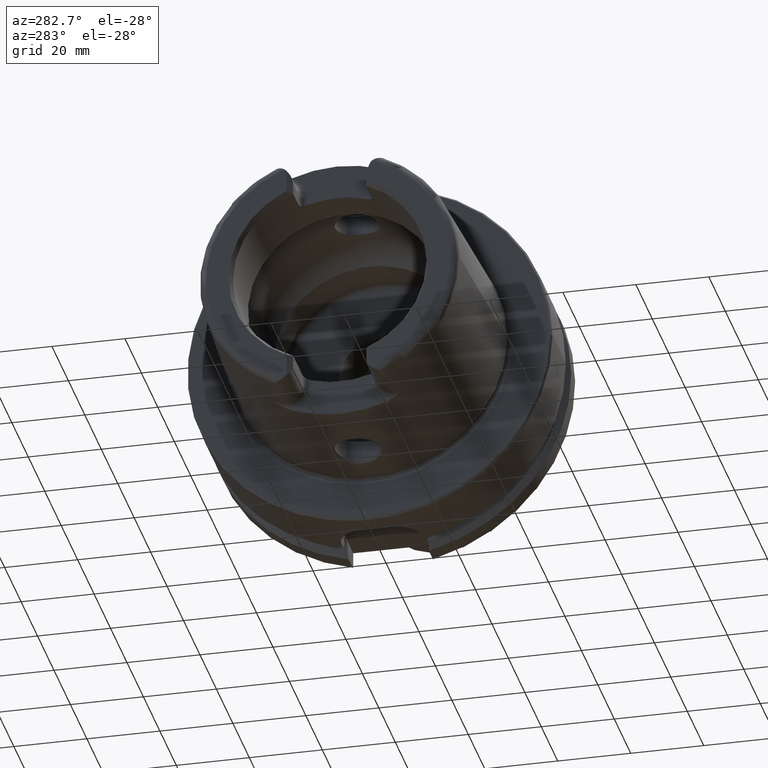
[diagram: clean part render]
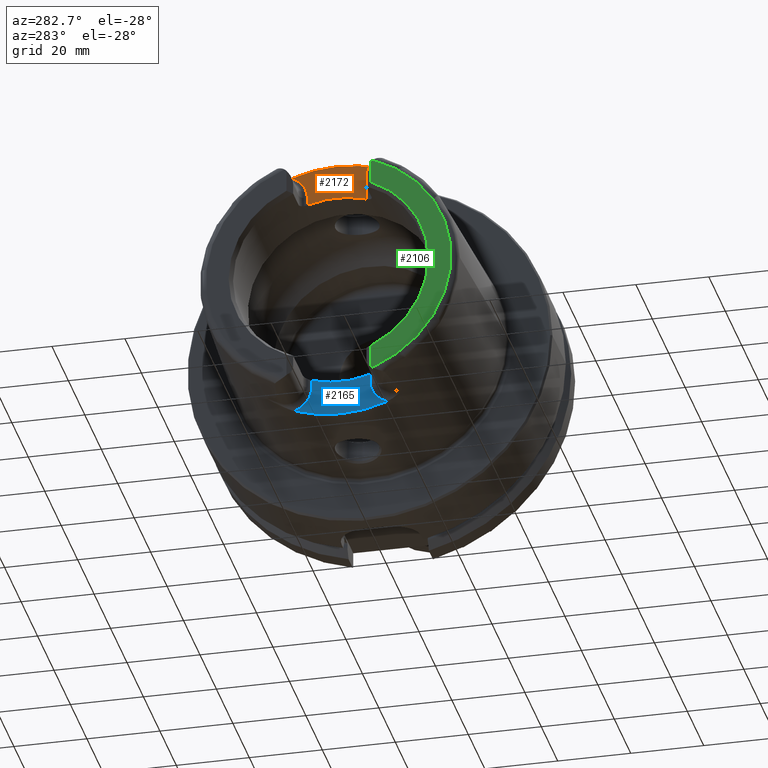
[diagram: same view with three faces highlighted in distinct colors, each labeled with its STEP entity id]
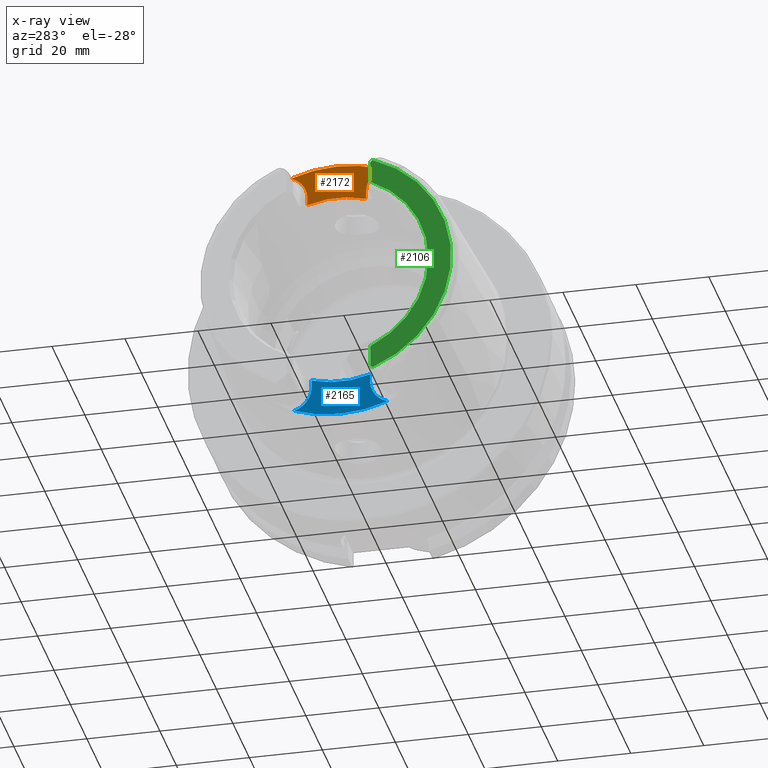
[diagram: x-ray of the same camera — body ghosted, the three highlighted faces saturated]
A machine part, auxiliary view with three faces highlighted in distinct colors.
The next image is the same camera in x-ray (body ghosted, the three faces saturated) — at least one of them is partly hidden behind the body in this view.
Their STEP definitions:

[orange] entity #2172 — the highlighted planar face has unit normal (-1, 0, 0).
#133=PLANE('',#2440);
#284=FACE_OUTER_BOUND('',#417,.T.);
#417=EDGE_LOOP('',(#1887,#1888,#1889,#1890,#1891,#1892));
#544=LINE('',#4536,#655);
#545=LINE('',#4565,#656);
#655=VECTOR('',#2971,10.);
#656=VECTOR('',#2984,10.);
#730=CIRCLE('',#2327,36.003493987976);
#773=CIRCLE('',#2413,6.88);
#775=CIRCLE('',#2416,6.88);
#787=CIRCLE('',#2441,26.5);
#912=VERTEX_POINT('',#3714);
#913=VERTEX_POINT('',#3731);
#1004=VERTEX_POINT('',#4533);
#1005=VERTEX_POINT('',#4535);
#1006=VERTEX_POINT('',#4550);
#1007=VERTEX_POINT('',#4554);
#1160=EDGE_CURVE('',#912,#913,#730,.T.);
#1298=EDGE_CURVE('',#1004,#1005,#544,.T.);
#1300=EDGE_CURVE('',#913,#1004,#773,.T.);
#1302=EDGE_CURVE('',#1006,#912,#775,.T.);
#1304=EDGE_CURVE('',#1007,#1006,#545,.T.);
#1325=EDGE_CURVE('',#1005,#1007,#787,.T.);
#1887=ORIENTED_EDGE('',*,*,#1300,.F.);
#1888=ORIENTED_EDGE('',*,*,#1160,.F.);
#1889=ORIENTED_EDGE('',*,*,#1302,.F.);
#1890=ORIENTED_EDGE('',*,*,#1304,.F.);
#1891=ORIENTED_EDGE('',*,*,#1325,.F.);
#1892=ORIENTED_EDGE('',*,*,#1298,.F.);
#2172=ADVANCED_FACE('',(#284),#133,.T.);
#2327=AXIS2_PLACEMENT_3D('',#3732,#2752,#2753);
#2413=AXIS2_PLACEMENT_3D('',#4548,#2974,#2975);
#2416=AXIS2_PLACEMENT_3D('',#4552,#2980,#2981);
#2440=AXIS2_PLACEMENT_3D('',#4623,#3036,#3037);
#2441=AXIS2_PLACEMENT_3D('',#4624,#3038,#3039);
#2752=DIRECTION('center_axis',(1.,0.,0.));
#2753=DIRECTION('ref_axis',(0.,1.,0.));
#2971=DIRECTION('',(0.,0.,-1.));
#2974=DIRECTION('center_axis',(-1.,0.,0.));
#2975=DIRECTION('ref_axis',(0.,0.564947834751706,0.82512662301574));
#2980=DIRECTION('center_axis',(-1.,0.,0.));
#2981=DIRECTION('ref_axis',(0.,-0.564947834751705,0.825126623015741));
#2984=DIRECTION('',(0.,0.,1.));
#3036=DIRECTION('center_axis',(-1.,0.,0.));
#3037=DIRECTION('ref_axis',(0.,0.,1.));
#3038=DIRECTION('center_axis',(-1.,0.,0.));
#3039=DIRECTION('ref_axis',(0.,1.,0.));
#3714=CARTESIAN_POINT('',(-40.,12.4227760464511,33.7923987701664));
#3731=CARTESIAN_POINT('',(-40.,-12.4227760464511,33.7923987701664));
#3732=CARTESIAN_POINT('Origin',(-40.,0.,0.));
#4533=CARTESIAN_POINT('',(-40.,-8.01,27.37));
#4535=CARTESIAN_POINT('',(-40.,-8.01,25.2604414054862));
#4536=CARTESIAN_POINT('',(-40.,-8.01,23.5));
#4548=CARTESIAN_POINT('Origin',(-40.,-14.89,27.37));
#4550=CARTESIAN_POINT('',(-40.,8.01,27.37));
#4552=CARTESIAN_POINT('Origin',(-40.,14.89,27.37));
#4554=CARTESIAN_POINT('',(-40.,8.01,25.2604414054862));
#4565=CARTESIAN_POINT('',(-40.,8.01,28.185));
#4623=CARTESIAN_POINT('Origin',(-40.,0.,29.));
#4624=CARTESIAN_POINT('Origin',(-40.,0.,0.));

[blue] entity #2165 — the highlighted planar face has unit normal (-1, 0, 0).
#130=PLANE('',#2428);
#277=FACE_OUTER_BOUND('',#410,.T.);
#410=EDGE_LOOP('',(#1859,#1860,#1861,#1862,#1863,#1864));
#546=LINE('',#4587,#657);
#549=LINE('',#4599,#660);
#657=VECTOR('',#2997,10.);
#660=VECTOR('',#3012,10.);
#728=CIRCLE('',#2325,36.25399498998);
#779=CIRCLE('',#2422,6.88);
#782=CIRCLE('',#2429,26.5);
#783=CIRCLE('',#2430,6.88);
#908=VERTEX_POINT('',#3663);
#909=VERTEX_POINT('',#3674);
#1010=VERTEX_POINT('',#4571);
#1012=VERTEX_POINT('',#4576);
#1014=VERTEX_POINT('',#4596);
#1015=VERTEX_POINT('',#4598);
#1154=EDGE_CURVE('',#908,#909,#728,.T.);
#1308=EDGE_CURVE('',#1010,#908,#779,.T.);
#1310=EDGE_CURVE('',#1012,#1010,#546,.T.);
#1315=EDGE_CURVE('',#1014,#1012,#782,.T.);
#1316=EDGE_CURVE('',#1015,#1014,#549,.T.);
#1317=EDGE_CURVE('',#909,#1015,#783,.T.);
#1859=ORIENTED_EDGE('',*,*,#1308,.F.);
#1860=ORIENTED_EDGE('',*,*,#1310,.F.);
#1861=ORIENTED_EDGE('',*,*,#1315,.F.);
#1862=ORIENTED_EDGE('',*,*,#1316,.F.);
#1863=ORIENTED_EDGE('',*,*,#1317,.F.);
#1864=ORIENTED_EDGE('',*,*,#1154,.F.);
#2165=ADVANCED_FACE('',(#277),#130,.T.);
#2325=AXIS2_PLACEMENT_3D('',#3675,#2748,#2749);
#2422=AXIS2_PLACEMENT_3D('',#4573,#2993,#2994);
#2428=AXIS2_PLACEMENT_3D('',#4595,#3008,#3009);
#2429=AXIS2_PLACEMENT_3D('',#4597,#3010,#3011);
#2430=AXIS2_PLACEMENT_3D('',#4600,#3013,#3014);
#2748=DIRECTION('center_axis',(1.,0.,0.));
#2749=DIRECTION('ref_axis',(0.,1.,0.));
#2993=DIRECTION('center_axis',(-1.,0.,0.));
#2994=DIRECTION('ref_axis',(0.,0.510937901715381,-0.8596176246394));
#2997=DIRECTION('',(0.,0.,-1.));
#3008=DIRECTION('center_axis',(-1.,0.,0.));
#3009=DIRECTION('ref_axis',(0.,0.,1.));
#3010=DIRECTION('center_axis',(-1.,0.,0.));
#3011=DIRECTION('ref_axis',(0.,1.,0.));
#3012=DIRECTION('',(0.,0.,1.));
#3013=DIRECTION('center_axis',(-1.,0.,0.));
#3014=DIRECTION('ref_axis',(0.,-0.510937901715381,-0.8596176246394));
#3663=CARTESIAN_POINT('',(-35.,-12.7918651267415,-33.9222690767105));
#3674=CARTESIAN_POINT('',(-35.,12.7918651267415,-33.9222690767105));
#3675=CARTESIAN_POINT('Origin',(-35.,0.,0.));
#4571=CARTESIAN_POINT('',(-35.,-8.01,-27.37));
#4573=CARTESIAN_POINT('Origin',(-35.,-14.89,-27.37));
#4576=CARTESIAN_POINT('',(-35.,-8.01,-25.2604414054862));
#4587=CARTESIAN_POINT('',(-35.,-8.01,-28.685));
#4595=CARTESIAN_POINT('Origin',(-35.,8.88178419700125E-15,-30.));
#4596=CARTESIAN_POINT('',(-35.,8.01,-25.2604414054862));
#4597=CARTESIAN_POINT('Origin',(-35.,0.,0.));
#4598=CARTESIAN_POINT('',(-35.,8.01,-27.37));
#4599=CARTESIAN_POINT('',(-35.,8.01,-25.));
#4600=CARTESIAN_POINT('Origin',(-35.,14.89,-27.37));

[green] entity #2106 — the highlighted planar face has unit normal (-1, 0, 0).
#111=PLANE('',#2306);
#218=FACE_OUTER_BOUND('',#348,.T.);
#348=EDGE_LOOP('',(#1509,#1510,#1511,#1512,#1513,#1514));
#481=LINE('',#3367,#592);
#483=LINE('',#3386,#594);
#592=VECTOR('',#2684,10.);
#594=VECTOR('',#2706,10.);
#717=CIRCLE('',#2302,27.3660254037844);
#720=CIRCLE('',#2307,4.88);
#721=CIRCLE('',#2308,33.6001839277785);
#722=CIRCLE('',#2309,4.88);
#876=VERTEX_POINT('',#3364);
#877=VERTEX_POINT('',#3366);
#879=VERTEX_POINT('',#3372);
#882=VERTEX_POINT('',#3380);
#883=VERTEX_POINT('',#3382);
#884=VERTEX_POINT('',#3384);
#1113=EDGE_CURVE('',#876,#877,#481,.T.);
#1116=EDGE_CURVE('',#877,#879,#717,.T.);
#1120=EDGE_CURVE('',#876,#882,#720,.T.);
#1121=EDGE_CURVE('',#883,#882,#721,.T.);
#1122=EDGE_CURVE('',#883,#884,#722,.T.);
#1123=EDGE_CURVE('',#879,#884,#483,.T.);
#1509=ORIENTED_EDGE('',*,*,#1113,.F.);
#1510=ORIENTED_EDGE('',*,*,#1120,.T.);
#1511=ORIENTED_EDGE('',*,*,#1121,.F.);
#1512=ORIENTED_EDGE('',*,*,#1122,.T.);
#1513=ORIENTED_EDGE('',*,*,#1123,.F.);
#1514=ORIENTED_EDGE('',*,*,#1116,.F.);
#2106=ADVANCED_FACE('',(#218),#111,.T.);
#2302=AXIS2_PLACEMENT_3D('',#3373,#2690,#2691);
#2306=AXIS2_PLACEMENT_3D('',#3379,#2698,#2699);
#2307=AXIS2_PLACEMENT_3D('',#3381,#2700,#2701);
#2308=AXIS2_PLACEMENT_3D('',#3383,#2702,#2703);
#2309=AXIS2_PLACEMENT_3D('',#3385,#2704,#2705);
#2684=DIRECTION('',(0.,0.,1.));
#2690=DIRECTION('center_axis',(-1.,0.,0.));
#2691=DIRECTION('ref_axis',(0.,-1.,0.));
#2698=DIRECTION('center_axis',(-1.,0.,0.));
#2699=DIRECTION('ref_axis',(0.,0.,1.));
#2700=DIRECTION('center_axis',(-1.,0.,0.));
#2701=DIRECTION('ref_axis',(0.,-1.,0.));
#2702=DIRECTION('center_axis',(1.,0.,0.));
#2703=DIRECTION('ref_axis',(0.,0.,-1.));
#2704=DIRECTION('center_axis',(-1.,0.,0.));
#2705=DIRECTION('ref_axis',(0.,0.477884921181369,-0.878422450821629));
#2706=DIRECTION('',(0.,0.,1.));
#3364=CARTESIAN_POINT('',(-50.,-11.51,-30.8899431813596));
#3366=CARTESIAN_POINT('',(-50.,-11.51,-24.8277918148307));
#3367=CARTESIAN_POINT('',(-50.,-11.51,-13.685));
#3372=CARTESIAN_POINT('',(-50.,-11.51,24.8277918148307));
#3373=CARTESIAN_POINT('Origin',(-50.,0.,0.));
#3379=CARTESIAN_POINT('Origin',(-50.,33.6001839277785,0.));
#3380=CARTESIAN_POINT('',(-50.,-12.0743049948301,-31.355757348091));
#3381=CARTESIAN_POINT('Origin',(-50.,-14.89,-27.37));
#3382=CARTESIAN_POINT('',(-50.,-12.0743049948301,31.355757348091));
#3383=CARTESIAN_POINT('Origin',(-50.,0.,0.));
#3384=CARTESIAN_POINT('',(-50.,-11.51,30.8899431813596));
#3385=CARTESIAN_POINT('Origin',(-50.,-14.89,27.37));
#3386=CARTESIAN_POINT('',(-50.,-11.51,9.));